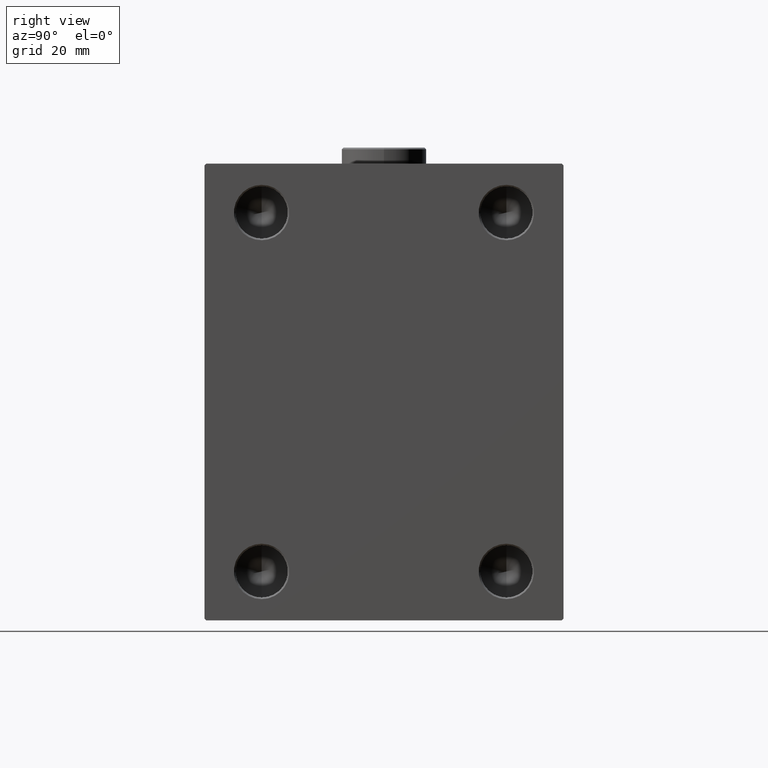
[diagram: clean part render]
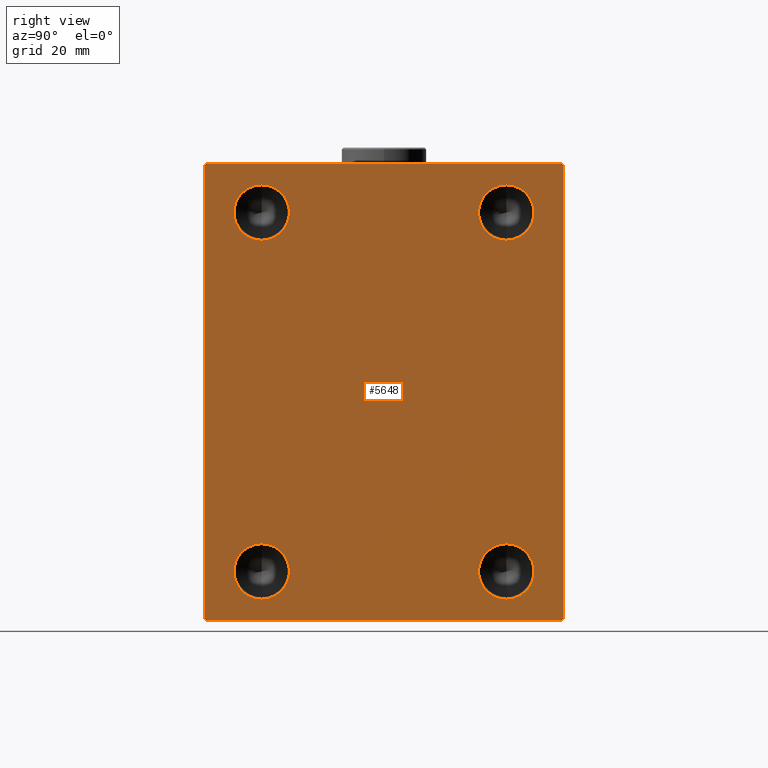
[diagram: same view with one face highlighted and labeled with its STEP entity id]
A machine part, right view. The second image highlights one B-rep face of the part: STEP entity #5648.
In plain terms, the highlighted planar face has unit normal (1, 0, 0).
Its self-contained STEP definition (entity closure, byte-faithful):
#119 = CARTESIAN_POINT ( 'NONE',  ( 118.0000000000000000, -55.00000000000000000, -70.00000000000000000 ) ) ;
#124 = AXIS2_PLACEMENT_3D ( 'NONE', #43360, #1496, #15532 ) ;
#441 = VECTOR ( 'NONE', #41520, 1000.000000000000000 ) ;
#564 = PLANE ( 'NONE',  #11942 ) ;
#650 = CARTESIAN_POINT ( 'NONE',  ( 118.0000000000000000, -37.49999999999999289, 55.00000000000000711 ) ) ;
#793 = LINE ( 'NONE', #35776, #21252 ) ;
#800 = ORIENTED_EDGE ( 'NONE', *, *, #15832, .F. ) ;
#1012 = FACE_BOUND ( 'NONE', #43404, .T. ) ;
#1386 = EDGE_CURVE ( 'NONE', #16937, #34972, #27969, .T. ) ;
#1496 = DIRECTION ( 'NONE',  ( 1.000000000000000000, -0.000000000000000000, -0.000000000000000000 ) ) ;
#1998 = VERTEX_POINT ( 'NONE', #37766 ) ;
#2019 = CARTESIAN_POINT ( 'NONE',  ( 118.0000000000000000, 55.00000000000000711, -69.99999999999998579 ) ) ;
#2311 = CIRCLE ( 'NONE', #28045, 8.500000000000007105 ) ;
#2739 = CARTESIAN_POINT ( 'NONE',  ( 118.0000000000000000, 54.99999999999999289, 69.50000000000004263 ) ) ;
#3336 = AXIS2_PLACEMENT_3D ( 'NONE', #39559, #4142, #32200 ) ;
#3642 = EDGE_CURVE ( 'NONE', #3761, #22032, #2311, .T. ) ;
#3761 = VERTEX_POINT ( 'NONE', #20307 ) ;
#4142 = DIRECTION ( 'NONE',  ( 1.000000000000000000, -0.000000000000000000, -0.000000000000000000 ) ) ;
#5497 = AXIS2_PLACEMENT_3D ( 'NONE', #34071, #29915, #16109 ) ;
#5536 = CARTESIAN_POINT ( 'NONE',  ( 118.0000000000000000, 54.50000000000004263, -69.99999999999998579 ) ) ;
#5648 = ADVANCED_FACE ( 'NONE', ( #1012, #15267, #39435, #39654, #15048 ), #564, .T. ) ;
#5765 = EDGE_LOOP ( 'NONE', ( #24031, #30672 ) ) ;
#5805 = ORIENTED_EDGE ( 'NONE', *, *, #24781, .T. ) ;
#6171 = EDGE_CURVE ( 'NONE', #18783, #20021, #11231, .T. ) ;
#7259 = CARTESIAN_POINT ( 'NONE',  ( 118.0000000000000000, -62.24999999999963762, 62.25000000000049738 ) ) ;
#7391 = ORIENTED_EDGE ( 'NONE', *, *, #10479, .T. ) ;
#8473 = CARTESIAN_POINT ( 'NONE',  ( 118.0000000000000000, 62.25000000000002132, 62.25000000000002132 ) ) ;
#9557 = DIRECTION ( 'NONE',  ( 0.000000000000000000, 0.000000000000000000, -1.000000000000000000 ) ) ;
#9981 = CIRCLE ( 'NONE', #3336, 8.500000000000007105 ) ;
#10013 = LINE ( 'NONE', #16221, #441 ) ;
#10200 = DIRECTION ( 'NONE',  ( -0.000000000000000000, 0.7071067811865474617, -0.7071067811865474617 ) ) ;
#10297 = ORIENTED_EDGE ( 'NONE', *, *, #27461, .T. ) ;
#10362 = CARTESIAN_POINT ( 'NONE',  ( 118.0000000000000000, -37.49999999999999289, -54.99999999999999289 ) ) ;
#10479 = EDGE_CURVE ( 'NONE', #19191, #30986, #17888, .T. ) ;
#10747 = EDGE_LOOP ( 'NONE', ( #23926, #13525 ) ) ;
#11231 = CIRCLE ( 'NONE', #14900, 8.500000000000007105 ) ;
#11311 = EDGE_CURVE ( 'NONE', #22343, #19191, #32391, .T. ) ;
#11864 = DIRECTION ( 'NONE',  ( 1.000000000000000000, -0.000000000000000000, -0.000000000000000000 ) ) ;
#11942 = AXIS2_PLACEMENT_3D ( 'NONE', #21953, #35769, #38980 ) ;
#12312 = VERTEX_POINT ( 'NONE', #35423 ) ;
#12382 = VECTOR ( 'NONE', #30636, 1000.000000000000000 ) ;
#13525 = ORIENTED_EDGE ( 'NONE', *, *, #18938, .F. ) ;
#13738 = CARTESIAN_POINT ( 'NONE',  ( 118.0000000000000000, -37.49999999999999289, -46.49999999999998579 ) ) ;
#14900 = AXIS2_PLACEMENT_3D ( 'NONE', #10362, #27399, #31073 ) ;
#15048 = FACE_OUTER_BOUND ( 'NONE', #40794, .T. ) ;
#15267 = FACE_BOUND ( 'NONE', #5765, .T. ) ;
#15347 = EDGE_CURVE ( 'NONE', #38847, #22343, #44339, .T. ) ;
#15532 = DIRECTION ( 'NONE',  ( 0.000000000000000000, 0.000000000000000000, -1.000000000000000000 ) ) ;
#15832 = EDGE_CURVE ( 'NONE', #31773, #31186, #31969, .T. ) ;
#16109 = DIRECTION ( 'NONE',  ( 0.000000000000000000, 0.000000000000000000, -1.000000000000000000 ) ) ;
#16221 = CARTESIAN_POINT ( 'NONE',  ( 118.0000000000000000, -55.00000000000000000, 70.00000000000000000 ) ) ;
#16833 = CARTESIAN_POINT ( 'NONE',  ( 118.0000000000000000, -55.00000000000000000, 69.50000000000002842 ) ) ;
#16918 = CARTESIAN_POINT ( 'NONE',  ( 118.0000000000000000, -55.00000000000000000, -69.50000000000000000 ) ) ;
#16937 = VERTEX_POINT ( 'NONE', #32468 ) ;
#17503 = CARTESIAN_POINT ( 'NONE',  ( 118.0000000000000000, 37.50000000000000000, 46.50000000000000000 ) ) ;
#17819 = CARTESIAN_POINT ( 'NONE',  ( 118.0000000000000000, 54.50000000000002132, 70.00000000000001421 ) ) ;
#17888 = LINE ( 'NONE', #35607, #20171 ) ;
#17966 = EDGE_CURVE ( 'NONE', #22032, #3761, #9981, .T. ) ;
#17993 = VECTOR ( 'NONE', #19275, 1000.000000000000000 ) ;
#18706 = VECTOR ( 'NONE', #28956, 1000.000000000000114 ) ;
#18783 = VERTEX_POINT ( 'NONE', #13738 ) ;
#18938 = EDGE_CURVE ( 'NONE', #20021, #18783, #21010, .T. ) ;
#18977 = EDGE_CURVE ( 'NONE', #32936, #40889, #10013, .T. ) ;
#19191 = VERTEX_POINT ( 'NONE', #17819 ) ;
#19267 = AXIS2_PLACEMENT_3D ( 'NONE', #650, #42969, #42742 ) ;
#19275 = DIRECTION ( 'NONE',  ( 0.000000000000000000, -9.912705577010325549E-17, 1.000000000000000000 ) ) ;
#19387 = CARTESIAN_POINT ( 'NONE',  ( 118.0000000000000000, 37.50000000000000000, 55.00000000000000711 ) ) ;
#19651 = CARTESIAN_POINT ( 'NONE',  ( 118.0000000000000000, -62.25000000000000000, -62.25000000000000000 ) ) ;
#20021 = VERTEX_POINT ( 'NONE', #20820 ) ;
#20171 = VECTOR ( 'NONE', #32133, 1000.000000000000000 ) ;
#20230 = CARTESIAN_POINT ( 'NONE',  ( 118.0000000000000000, -37.49999999999999289, 55.00000000000000711 ) ) ;
#20295 = AXIS2_PLACEMENT_3D ( 'NONE', #29346, #11864, #9557 ) ;
#20307 = CARTESIAN_POINT ( 'NONE',  ( 118.0000000000000000, 37.50000000000000000, 63.50000000000001421 ) ) ;
#20486 = ORIENTED_EDGE ( 'NONE', *, *, #3642, .F. ) ;
#20820 = CARTESIAN_POINT ( 'NONE',  ( 118.0000000000000000, -37.49999999999999289, -63.50000000000000000 ) ) ;
#21010 = CIRCLE ( 'NONE', #20295, 8.500000000000007105 ) ;
#21252 = VECTOR ( 'NONE', #42886, 1000.000000000000000 ) ;
#21855 = EDGE_CURVE ( 'NONE', #30986, #32936, #38777, .T. ) ;
#21953 = CARTESIAN_POINT ( 'NONE',  ( 118.0000000000000000, 0.000000000000000000, 0.000000000000000000 ) ) ;
#22032 = VERTEX_POINT ( 'NONE', #17503 ) ;
#22191 = CARTESIAN_POINT ( 'NONE',  ( 118.0000000000000000, 37.50000000000000000, -63.50000000000000000 ) ) ;
#22343 = VERTEX_POINT ( 'NONE', #2739 ) ;
#22394 = DIRECTION ( 'NONE',  ( 1.000000000000000000, -0.000000000000000000, -0.000000000000000000 ) ) ;
#22952 = ORIENTED_EDGE ( 'NONE', *, *, #15347, .T. ) ;
#23660 = CIRCLE ( 'NONE', #124, 8.500000000000007105 ) ;
#23926 = ORIENTED_EDGE ( 'NONE', *, *, #6171, .F. ) ;
#24031 = ORIENTED_EDGE ( 'NONE', *, *, #39517, .F. ) ;
#24304 = EDGE_CURVE ( 'NONE', #1998, #12312, #43895, .T. ) ;
#24337 = VECTOR ( 'NONE', #35340, 1000.000000000000000 ) ;
#24410 = CIRCLE ( 'NONE', #19267, 8.500000000000007105 ) ;
#24781 = EDGE_CURVE ( 'NONE', #40889, #16937, #41486, .T. ) ;
#26140 = ORIENTED_EDGE ( 'NONE', *, *, #1386, .T. ) ;
#26283 = DIRECTION ( 'NONE',  ( 0.000000000000000000, 0.000000000000000000, -1.000000000000000000 ) ) ;
#27017 = CARTESIAN_POINT ( 'NONE',  ( 118.0000000000000000, 55.00000000000000711, -69.50000000000001421 ) ) ;
#27399 = DIRECTION ( 'NONE',  ( 1.000000000000000000, -0.000000000000000000, -0.000000000000000000 ) ) ;
#27461 = EDGE_CURVE ( 'NONE', #34972, #38847, #793, .T. ) ;
#27969 = LINE ( 'NONE', #119, #24337 ) ;
#28045 = AXIS2_PLACEMENT_3D ( 'NONE', #19387, #22394, #26283 ) ;
#28949 = ORIENTED_EDGE ( 'NONE', *, *, #18977, .T. ) ;
#28956 = DIRECTION ( 'NONE',  ( -0.000000000000000000, -0.7071067811865474617, 0.7071067811865474617 ) ) ;
#29346 = CARTESIAN_POINT ( 'NONE',  ( 118.0000000000000000, -37.49999999999999289, -54.99999999999999289 ) ) ;
#29915 = DIRECTION ( 'NONE',  ( 1.000000000000000000, -0.000000000000000000, -0.000000000000000000 ) ) ;
#30636 = DIRECTION ( 'NONE',  ( 0.000000000000000000, -0.7071067811865524577, -0.7071067811865426878 ) ) ;
#30672 = ORIENTED_EDGE ( 'NONE', *, *, #24304, .F. ) ;
#30798 = DIRECTION ( 'NONE',  ( 1.000000000000000000, -0.000000000000000000, -0.000000000000000000 ) ) ;
#30986 = VERTEX_POINT ( 'NONE', #37346 ) ;
#31073 = DIRECTION ( 'NONE',  ( 0.000000000000000000, 0.000000000000000000, -1.000000000000000000 ) ) ;
#31186 = VERTEX_POINT ( 'NONE', #32706 ) ;
#31270 = ORIENTED_EDGE ( 'NONE', *, *, #34540, .F. ) ;
#31773 = VERTEX_POINT ( 'NONE', #22191 ) ;
#31969 = CIRCLE ( 'NONE', #5497, 8.500000000000007105 ) ;
#32133 = DIRECTION ( 'NONE',  ( 0.000000000000000000, -1.000000000000000000, -1.261617073437677999E-16 ) ) ;
#32183 = VECTOR ( 'NONE', #10200, 1000.000000000000114 ) ;
#32200 = DIRECTION ( 'NONE',  ( 0.000000000000000000, 0.000000000000000000, -1.000000000000000000 ) ) ;
#32391 = LINE ( 'NONE', #8473, #18706 ) ;
#32468 = CARTESIAN_POINT ( 'NONE',  ( 118.0000000000000000, -54.50000000000000000, -70.00000000000000000 ) ) ;
#32706 = CARTESIAN_POINT ( 'NONE',  ( 118.0000000000000000, 37.50000000000000000, -46.49999999999998579 ) ) ;
#32936 = VERTEX_POINT ( 'NONE', #16833 ) ;
#34031 = DIRECTION ( 'NONE',  ( 0.000000000000000000, 0.000000000000000000, -1.000000000000000000 ) ) ;
#34071 = CARTESIAN_POINT ( 'NONE',  ( 118.0000000000000000, 37.50000000000000000, -54.99999999999999289 ) ) ;
#34540 = EDGE_CURVE ( 'NONE', #31186, #31773, #23660, .T. ) ;
#34972 = VERTEX_POINT ( 'NONE', #5536 ) ;
#35340 = DIRECTION ( 'NONE',  ( 0.000000000000000000, 1.000000000000000000, 1.261617073437677752E-16 ) ) ;
#35423 = CARTESIAN_POINT ( 'NONE',  ( 118.0000000000000000, -37.49999999999999289, 63.50000000000001421 ) ) ;
#35462 = ORIENTED_EDGE ( 'NONE', *, *, #21855, .T. ) ;
#35607 = CARTESIAN_POINT ( 'NONE',  ( 118.0000000000000000, 54.99999999999999289, 70.00000000000001421 ) ) ;
#35769 = DIRECTION ( 'NONE',  ( 1.000000000000000000, 0.000000000000000000, 0.000000000000000000 ) ) ;
#35776 = CARTESIAN_POINT ( 'NONE',  ( 118.0000000000000000, 62.25000000000040501, -62.24999999999954525 ) ) ;
#35847 = AXIS2_PLACEMENT_3D ( 'NONE', #20230, #30798, #34031 ) ;
#37346 = CARTESIAN_POINT ( 'NONE',  ( 118.0000000000000000, -54.50000000000002132, 70.00000000000000000 ) ) ;
#37766 = CARTESIAN_POINT ( 'NONE',  ( 118.0000000000000000, -37.49999999999999289, 46.50000000000000000 ) ) ;
#38777 = LINE ( 'NONE', #7259, #12382 ) ;
#38847 = VERTEX_POINT ( 'NONE', #27017 ) ;
#38980 = DIRECTION ( 'NONE',  ( 0.000000000000000000, 0.000000000000000000, -1.000000000000000000 ) ) ;
#39201 = ORIENTED_EDGE ( 'NONE', *, *, #11311, .T. ) ;
#39435 = FACE_BOUND ( 'NONE', #10747, .T. ) ;
#39517 = EDGE_CURVE ( 'NONE', #12312, #1998, #24410, .T. ) ;
#39559 = CARTESIAN_POINT ( 'NONE',  ( 118.0000000000000000, 37.50000000000000000, 55.00000000000000711 ) ) ;
#39654 = FACE_BOUND ( 'NONE', #41811, .T. ) ;
#40794 = EDGE_LOOP ( 'NONE', ( #7391, #35462, #28949, #5805, #26140, #10297, #22952, #39201 ) ) ;
#40889 = VERTEX_POINT ( 'NONE', #16918 ) ;
#41486 = LINE ( 'NONE', #19651, #32183 ) ;
#41520 = DIRECTION ( 'NONE',  ( 0.000000000000000000, 0.000000000000000000, -1.000000000000000000 ) ) ;
#41811 = EDGE_LOOP ( 'NONE', ( #31270, #800 ) ) ;
#42742 = DIRECTION ( 'NONE',  ( 0.000000000000000000, 0.000000000000000000, -1.000000000000000000 ) ) ;
#42886 = DIRECTION ( 'NONE',  ( -0.000000000000000000, 0.7071067811865426878, 0.7071067811865524577 ) ) ;
#42969 = DIRECTION ( 'NONE',  ( 1.000000000000000000, -0.000000000000000000, -0.000000000000000000 ) ) ;
#43360 = CARTESIAN_POINT ( 'NONE',  ( 118.0000000000000000, 37.50000000000000000, -54.99999999999999289 ) ) ;
#43361 = ORIENTED_EDGE ( 'NONE', *, *, #17966, .F. ) ;
#43404 = EDGE_LOOP ( 'NONE', ( #20486, #43361 ) ) ;
#43895 = CIRCLE ( 'NONE', #35847, 8.500000000000007105 ) ;
#44339 = LINE ( 'NONE', #2019, #17993 ) ;